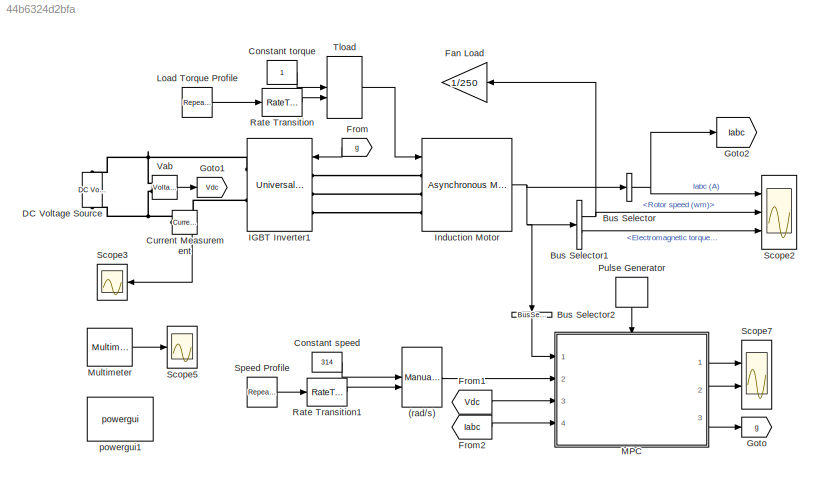
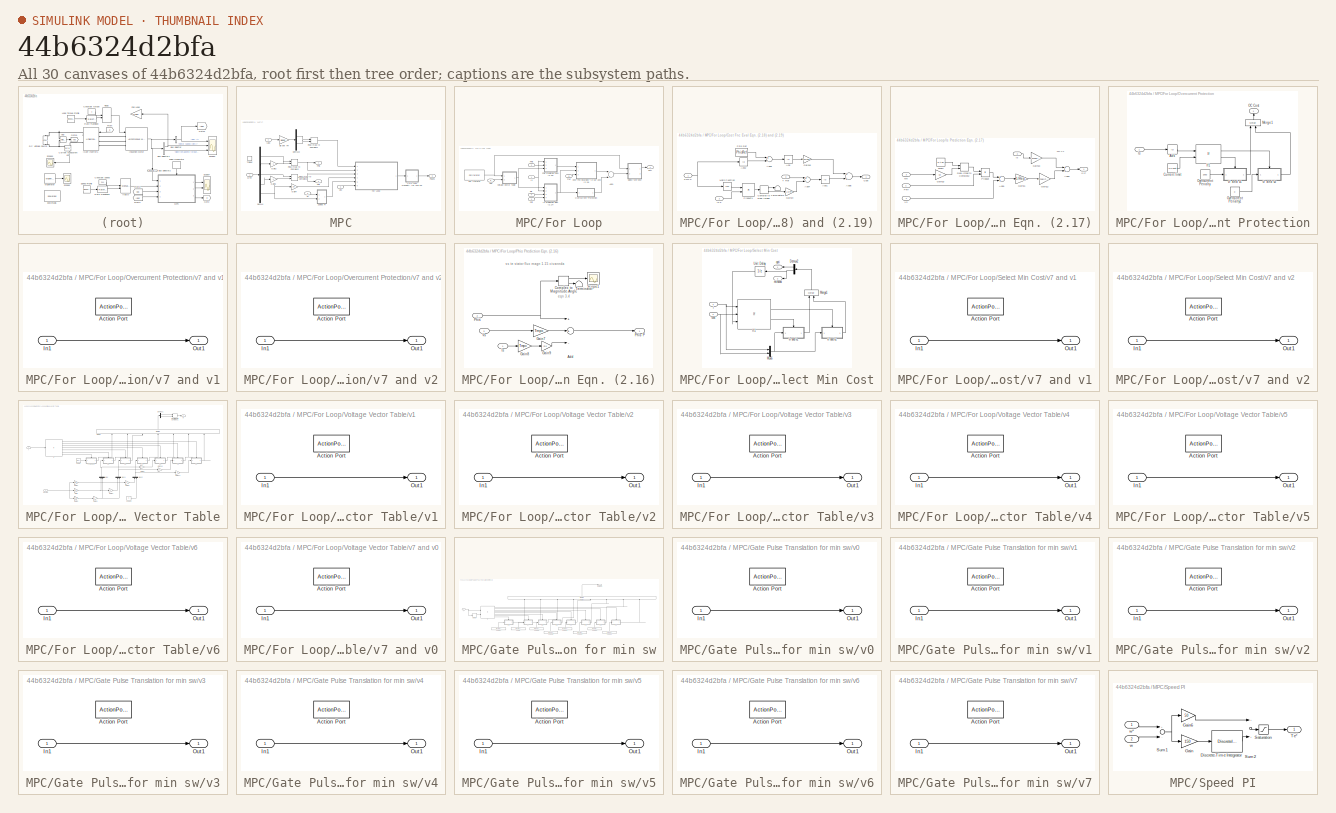
[diagram: thumbnail index - all 30 canvases of the model, root first then tree order]
MODEL slx_44b6324d2bfa
KIND model
CONFIG AbsTol = auto
CONFIG FixedStep = 1e-6
CONFIG MaxStep = 4e-6
CONFIG MinStep = auto
CONFIG RelTol = 1e-6
CONFIG SampleTimeConstraint = Unconstrained
CONFIG Solver = FixedStepAuto
CONFIG SolverMode = Auto
CONFIG SolverName = FixedStepAuto
CONFIG StartTime = 0.0
CONFIG StopTime = 3.8
BLOCK [ManualSwitch] (rad//s)
  CurrentSetting = 0
BLOCK [BusSelector] Bus Selector
  OutputAsBus = on
  OutputSignals = Stator measurements.Stator current is_a (A),Stator measurements.Stator current is_b (A),Stator measurements.Stator current is_c (A)
  Ports = [1, 1]
BLOCK [BusSelector] Bus Selector1
  OutputSignals = Mechanical.Rotor speed (wm),Mechanical.Electromagnetic torque Te (N*m)
  Ports = [1, 2]
BLOCK [BusSelector] Bus Selector2
  OutputAsBus = on
  OutputSignals = Stator measurements.Stator flux phis_q (V s),Stator measurements.Stator flux phis_d (V s),Rotor measurements.Rotor flux phir_q (V s),Rotor measurements.Rotor flux phir_d (V s),Mechanical.Rotor speed (wm)
  Ports = [1, 1]
BLOCK [Constant] Constant speed
  Value = 314
BLOCK [Constant] Constant torque
BLOCK [Reference] Current Measurement  REF=powerlib/Measurements/Current Measurement
  Ports = [0, 1, 0, 0, 0, 1, 1]
  SourceBlock = powerlib/Measurements/Current Measurement
  SourceType = Current Measurement
  UserDataPersistent = on
BLOCK [Reference] DC Voltage Source  REF=powerlib/Electrical
Sources/DC Voltage Source
  Ports = [0, 0, 0, 0, 0, 1, 1]
  SourceBlock = powerlib/Electrical\nSources/DC Voltage Source
  SourceType = DC Voltage Source
BLOCK [Gain] Fan Load
  Gain = 1/250
  OutDataTypeStr = Inherit: Inherit via internal rule
  ParamDataTypeStr = Inherit: Inherit via internal rule
  SaturateOnIntegerOverflow = off
BLOCK [From] From
  GotoTag = g
BLOCK [From] From1
  GotoTag = Vdc
BLOCK [From] From2
  GotoTag = Iabc
BLOCK [Goto] Goto
  GotoTag = g
BLOCK [Goto] Goto1
  GotoTag = Vdc
BLOCK [Goto] Goto2
  GotoTag = Iabc
BLOCK [Reference] IGBT Inverter1  REF=powerlib/Power
Electronics/Universal Bridge
  AttributesFormatString = \n
  Ports = [1, 0, 0, 0, 0, 3, 2]
  SourceBlock = powerlib/Power\nElectronics/Universal Bridge
  SourceType = Universal Bridge
BLOCK [Reference] Induction Motor  REF=powerlib/Machines/Asynchronous Machine
SI Units
  AttributesFormatString = \n
  Ports = [1, 1, 0, 0, 0, 3]
  SourceBlock = powerlib/Machines/Asynchronous Machine\nSI Units
  SourceType = Asynchronous Machine
BLOCK [Reference] Load Torque Profile  REF=simulink/Sources/Repeating
Sequence
Stair
  Ports = [0, 1]
  SourceBlock = simulink/Sources/Repeating\nSequence\nStair
  SourceType = Repeating Sequence Stair
BLOCK [SubSystem] MPC
  Ports = [4, 3, 0, 1]
  RequestExecContextInheritance = off
  TreatAsAtomicUnit = on
  Variant = off
BLOCK [Demux] MPC/Demux
  DisplayOption = bar
  Outputs = 5
  Ports = [1, 5]
BLOCK [Demux] MPC/Demux2
  DisplayOption = bar
  Outputs = 2
  Ports = [1, 2]
BLOCK [SubSystem] MPC/For Loop
  Ports = [6, 1]
  RequestExecContextInheritance = off
  TreatAsAtomicUnit = on
  Variant = off
BLOCK [Sum] MPC/For Loop/Add1
  InputSameDT = off
  OutDataTypeStr = Inherit: Inherit via internal rule
  Ports = [2, 1]
  SaturateOnIntegerOverflow = off
BLOCK [SubSystem] MPC/For Loop/Cost Fnc Eval Eqn. (2.18) and (2.19)
  Ports = [3, 1]
  RequestExecContextInheritance = off
  Variant = off
BLOCK [Abs] MPC/For Loop/Cost Fnc Eval Eqn. (2.18) and (2.19)/Abs
  SaturateOnIntegerOverflow = off
BLOCK [Abs] MPC/For Loop/Cost Fnc Eval Eqn. (2.18) and (2.19)/Abs1
  SaturateOnIntegerOverflow = off
BLOCK [Abs] MPC/For Loop/Cost Fnc Eval Eqn. (2.18) and (2.19)/Abs2
  SaturateOnIntegerOverflow = off
BLOCK [Sum] MPC/For Loop/Cost Fnc Eval Eqn. (2.18) and (2.19)/Add3
  InputSameDT = off
  Inputs = +-
  OutDataTypeStr = Inherit: Inherit via internal rule
  Ports = [2, 1]
  SaturateOnIntegerOverflow = off
BLOCK [Sum] MPC/For Loop/Cost Fnc Eval Eqn. (2.18) and (2.19)/Add4
  InputSameDT = off
  Inputs = +-
  OutDataTypeStr = Inherit: Inherit via internal rule
  Ports = [2, 1]
  SaturateOnIntegerOverflow = off
BLOCK [Sum] MPC/For Loop/Cost Fnc Eval Eqn. (2.18) and (2.19)/Add5
  InputSameDT = off
  OutDataTypeStr = Inherit: Inherit via internal rule
  Ports = [2, 1]
  SaturateOnIntegerOverflow = off
BLOCK [ComplexToRealImag] MPC/For Loop/Cost Fnc Eval Eqn. (2.18) and (2.19)/Complex to Real-Imag1
  Ports = [1, 2]
BLOCK [Outport] MPC/For Loop/Cost Fnc Eval Eqn. (2.18) and (2.19)/Cost
  IconDisplay = Port number
BLOCK [Gain] MPC/For Loop/Cost Fnc Eval Eqn. (2.18) and (2.19)/Gain14
  Gain = 1.5*PP
  OutDataTypeStr = Inherit: Inherit via internal rule
  ParamDataTypeStr = Inherit: Inherit via internal rule
  SaturateOnIntegerOverflow = off
BLOCK [Gain] MPC/For Loop/Cost Fnc Eval Eqn. (2.18) and (2.19)/Gain15
  Gain = Lambda
  OutDataTypeStr = Inherit: Inherit via internal rule
  ParamDataTypeStr = Inherit: Inherit via internal rule
  SaturateOnIntegerOverflow = off
BLOCK [Inport] MPC/For Loop/Cost Fnc Eval Eqn. (2.18) and (2.19)/Is P
  IconDisplay = Port number
  Port = 2
BLOCK [Math] MPC/For Loop/Cost Fnc Eval Eqn. (2.18) and (2.19)/Math Function
  Operator = conj
  Ports = [1, 1]
BLOCK [Inport] MPC/For Loop/Cost Fnc Eval Eqn. (2.18) and (2.19)/Phis P
  IconDisplay = Port number
BLOCK [Constant] MPC/For Loop/Cost Fnc Eval Eqn. (2.18) and (2.19)/Phis Ref
  Value = PhisRef
BLOCK [Product] MPC/For Loop/Cost Fnc Eval Eqn. (2.18) and (2.19)/Product1
  InputSameDT = off
  OutDataTypeStr = Inherit: Inherit via internal rule
  Ports = [2, 1]
  RndMeth = Floor
  SaturateOnIntegerOverflow = off
BLOCK [Inport] MPC/For Loop/Cost Fnc Eval Eqn. (2.18) and (2.19)/T Ref
  IconDisplay = Port number
  Port = 3
BLOCK [Terminator] MPC/For Loop/Cost Fnc Eval Eqn. (2.18) and (2.19)/Terminator2
BLOCK [ForIterator] MPC/For Loop/For Iterator
  IterationLimit = 7
  IterationVariableDataType = double
  Ports = [0, 1]
BLOCK [Inport] MPC/For Loop/Is
  IconDisplay = Port number
BLOCK [SubSystem] MPC/For Loop/Is Prediction Eqn. (2.17)
  Ports = [4, 1]
  RequestExecContextInheritance = off
  Variant = off
BLOCK [Sum] MPC/For Loop/Is Prediction Eqn. (2.17)/Add1
  InputSameDT = off
  OutDataTypeStr = Inherit: Inherit via internal rule
  Ports = [2, 1]
  SaturateOnIntegerOverflow = off
BLOCK [Sum] MPC/For Loop/Is Prediction Eqn. (2.17)/Add2
  InputSameDT = off
  OutDataTypeStr = Inherit: Inherit via internal rule
  Ports = [2, 1]
  SaturateOnIntegerOverflow = off
BLOCK [Gain] MPC/For Loop/Is Prediction Eqn. (2.17)/Gain10
  Gain = -kr
  OutDataTypeStr = Inherit: Inherit via internal rule
  ParamDataTypeStr = Inherit: Inherit via internal rule
  SaturateOnIntegerOverflow = off
BLOCK [Gain] MPC/For Loop/Is Prediction Eqn. (2.17)/Gain11
  Gain = 1/Req
  OutDataTypeStr = Inherit: Inherit via internal rule
  ParamDataTypeStr = Inherit: Inherit via internal rule
  SaturateOnIntegerOverflow = off
BLOCK [Gain] MPC/For Loop/Is Prediction Eqn. (2.17)/Gain12
  Gain = Tmpc/(taus+Tmpc)
  OutDataTypeStr = Inherit: Inherit via internal rule
  ParamDataTypeStr = Inherit: Inherit via internal rule
  SaturateOnIntegerOverflow = off
BLOCK [Gain] MPC/For Loop/Is Prediction Eqn. (2.17)/Gain13
  Gain = 1-Tmpc/taus
  OutDataTypeStr = Inherit: Inherit via internal rule
  ParamDataTypeStr = Inherit: Inherit via internal rule
  SaturateOnIntegerOverflow = off
BLOCK [Inport] MPC/For Loop/Is Prediction Eqn. (2.17)/Is
  IconDisplay = Port number
  Port = 2
BLOCK [Outport] MPC/For Loop/Is Prediction Eqn. (2.17)/Is P
  IconDisplay = Port number
BLOCK [Inport] MPC/For Loop/Is Prediction Eqn. (2.17)/Phir
  IconDisplay = Port number
  Port = 4
BLOCK [Product] MPC/For Loop/Is Prediction Eqn. (2.17)/Product
  InputSameDT = off
  OutDataTypeStr = Inherit: Inherit via internal rule
  Ports = [2, 1]
  RndMeth = Floor
  SaturateOnIntegerOverflow = off
BLOCK [RealImagToComplex] MPC/For Loop/Is Prediction Eqn. (2.17)/Real-Imag to Complex2
  Ports = [2, 1]
BLOCK [Inport] MPC/For Loop/Is Prediction Eqn. (2.17)/Vs
  IconDisplay = Port number
BLOCK [Constant] MPC/For Loop/Is Prediction Eqn. (2.17)/cons3
  Value = kr/taur
BLOCK [Inport] MPC/For Loop/Is Prediction Eqn. (2.17)/we
  IconDisplay = Port number
  Port = 3
BLOCK [SubSystem] MPC/For Loop/Overcurrent Protection
  Ports = [1, 1]
  RequestExecContextInheritance = off
  Variant = off
BLOCK [Abs] MPC/For Loop/Overcurrent Protection/Abs
  SaturateOnIntegerOverflow = off
BLOCK [Constant] MPC/For Loop/Overcurrent Protection/Current limit
  Value = OCLimit
BLOCK [If] MPC/For Loop/Overcurrent Protection/If1
  IfExpression = u1<u2
  NumInputs = 2
  Ports = [2, 2]
BLOCK [Inport] MPC/For Loop/Overcurrent Protection/Is
  IconDisplay = Port number
BLOCK [Merge] MPC/For Loop/Overcurrent Protection/Merge1
  Ports = [2, 1]
BLOCK [Outport] MPC/For Loop/Overcurrent Protection/OC Cost
  IconDisplay = Port number
BLOCK [Constant] MPC/For Loop/Overcurrent Protection/Overcurrent Penalty
  Value = 10e3
BLOCK [Constant] MPC/For Loop/Overcurrent Protection/Overcurrent Penalty1
  Value = 0
BLOCK [SubSystem] MPC/For Loop/Overcurrent Protection/v7 and v1
  Ports = [1, 1, 0, 0, 0, 0, 0, 1]
  RequestExecContextInheritance = off
  TreatAsAtomicUnit = on
  Variant = off
BLOCK [ActionPort] MPC/For Loop/Overcurrent Protection/v7 and v1/Action Port
  ActionType = else
BLOCK [Inport] MPC/For Loop/Overcurrent Protection/v7 and v1/In1
  IconDisplay = Port number
BLOCK [Outport] MPC/For Loop/Overcurrent Protection/v7 and v1/Out1
  IconDisplay = Port number
BLOCK [SubSystem] MPC/For Loop/Overcurrent Protection/v7 and v2
  Ports = [1, 1, 0, 0, 0, 0, 0, 1]
  RequestExecContextInheritance = off
  TreatAsAtomicUnit = on
  Variant = off
BLOCK [ActionPort] MPC/For Loop/Overcurrent Protection/v7 and v2/Action Port
  ActionType = then
BLOCK [Inport] MPC/For Loop/Overcurrent Protection/v7 and v2/In1
  IconDisplay = Port number
BLOCK [Outport] MPC/For Loop/Overcurrent Protection/v7 and v2/Out1
  IconDisplay = Port number
BLOCK [Inport] MPC/For Loop/Phir
  IconDisplay = Port number
  Port = 3
BLOCK [Inport] MPC/For Loop/Phis
  IconDisplay = Port number
  Port = 2
BLOCK [SubSystem] MPC/For Loop/Phis Prediction Eqn. (2.16)
  Ports = [3, 1]
  RequestExecContextInheritance = off
  Variant = off
BLOCK [Sum] MPC/For Loop/Phis Prediction Eqn. (2.16)/Add
  InputSameDT = off
  Inputs = ++-
  OutDataTypeStr = Inherit: Inherit via internal rule
  Ports = [3, 1]
  SaturateOnIntegerOverflow = off
BLOCK [ComplexToMagnitudeAngle] MPC/For Loop/Phis Prediction Eqn. (2.16)/Complex to Magnitude-Angle
  Ports = [1, 2]
BLOCK [Gain] MPC/For Loop/Phis Prediction Eqn. (2.16)/Gain7
  Gain = Tmpc
  OutDataTypeStr = Inherit: Inherit via internal rule
  ParamDataTypeStr = Inherit: Inherit via internal rule
  SaturateOnIntegerOverflow = off
BLOCK [Gain] MPC/For Loop/Phis Prediction Eqn. (2.16)/Gain8
  Gain = Tmpc
  OutDataTypeStr = Inherit: Inherit via internal rule
  ParamDataTypeStr = Inherit: Inherit via internal rule
  SaturateOnIntegerOverflow = off
BLOCK [Gain] MPC/For Loop/Phis Prediction Eqn. (2.16)/Gain9
  Gain = Rs
  OutDataTypeStr = Inherit: Inherit via internal rule
  ParamDataTypeStr = Inherit: Inherit via internal rule
  SaturateOnIntegerOverflow = off
BLOCK [Inport] MPC/For Loop/Phis Prediction Eqn. (2.16)/Is
  IconDisplay = Port number
BLOCK [Inport] MPC/For Loop/Phis Prediction Eqn. (2.16)/Phis
  IconDisplay = Port number
  Port = 2
BLOCK [Outport] MPC/For Loop/Phis Prediction Eqn. (2.16)/Phis P
  IconDisplay = Port number
BLOCK [Scope] MPC/For Loop/Phis Prediction Eqn. (2.16)/Scope1
  Ports = [1]
  ScopeSpecificationString = Simulink.scopes.TimeScopeBlockCfg('CurrentConfiguration', extmgr.ConfigurationSet(extmgr.Configuration('Core','General UI',true),extmgr.Configuration('Core','Source UI',true),extmgr.Configuration('Sources','WiredSimulink',true,'DataLoggingVariableName','ScopeData1'),extmgr.Configuration('Visuals','Time Domain',true,'SerializedDisplays',{struct('MinYLimReal','-0.12944','MaxYLimReal','1.16492','YLab...<+1458ch>
BLOCK [Terminator] MPC/For Loop/Phis Prediction Eqn. (2.16)/Terminator
BLOCK [Inport] MPC/For Loop/Phis Prediction Eqn. (2.16)/Vs
  IconDisplay = Port number
  Port = 3
BLOCK [SubSystem] MPC/For Loop/Select Min Cost
  Ports = [2, 2]
  RequestExecContextInheritance = off
  Variant = off
BLOCK [Demux] MPC/For Loop/Select Min Cost/Demux2
  DisplayOption = bar
  Outputs = 2
  Ports = [1, 2]
BLOCK [If] MPC/For Loop/Select Min Cost/If1
  ElseIfExpressions = u2<=u3
  IfExpression = u1==1
  NumInputs = 3
  Ports = [3, 2]
  ShowElse = off
BLOCK [Merge] MPC/For Loop/Select Min Cost/Merge1
  Ports = [2, 1]
BLOCK [Mux] MPC/For Loop/Select Min Cost/Mux6
  DisplayOption = bar
  Inputs = 2
  Ports = [2, 1]
BLOCK [UnitDelay] MPC/For Loop/Select Min Cost/Unit Delay
  InputProcessing = Elements as channels (sample based)
  SampleTime = -1
BLOCK [Inport] MPC/For Loop/Select Min Cost/cost
  IconDisplay = Port number
  Port = 2
BLOCK [Inport] MPC/For Loop/Select Min Cost/i
  IconDisplay = Port number
BLOCK [Outport] MPC/For Loop/Select Min Cost/mincost
  IconDisplay = Port number
  Port = 2
BLOCK [Outport] MPC/For Loop/Select Min Cost/opti
  IconDisplay = Port number
BLOCK [SubSystem] MPC/For Loop/Select Min Cost/v7 and v1
  Ports = [1, 1, 0, 0, 0, 0, 0, 1]
  RequestExecContextInheritance = off
  TreatAsAtomicUnit = on
  Variant = off
BLOCK [ActionPort] MPC/For Loop/Select Min Cost/v7 and v1/Action Port
  ActionType = elseif
BLOCK [Inport] MPC/For Loop/Select Min Cost/v7 and v1/In1
  IconDisplay = Port number
BLOCK [Outport] MPC/For Loop/Select Min Cost/v7 and v1/Out1
  IconDisplay = Port number
BLOCK [SubSystem] MPC/For Loop/Select Min Cost/v7 and v2
  Ports = [1, 1, 0, 0, 0, 0, 0, 1]
  RequestExecContextInheritance = off
  TreatAsAtomicUnit = on
  Variant = off
BLOCK [ActionPort] MPC/For Loop/Select Min Cost/v7 and v2/Action Port
  ActionType = then
BLOCK [Inport] MPC/For Loop/Select Min Cost/v7 and v2/In1
  IconDisplay = Port number
BLOCK [Outport] MPC/For Loop/Select Min Cost/v7 and v2/Out1
  IconDisplay = Port number
BLOCK [Inport] MPC/For Loop/Tref
  IconDisplay = Port number
  Port = 5
BLOCK [Inport] MPC/For Loop/Vdc
  IconDisplay = Port number
  Port = 6
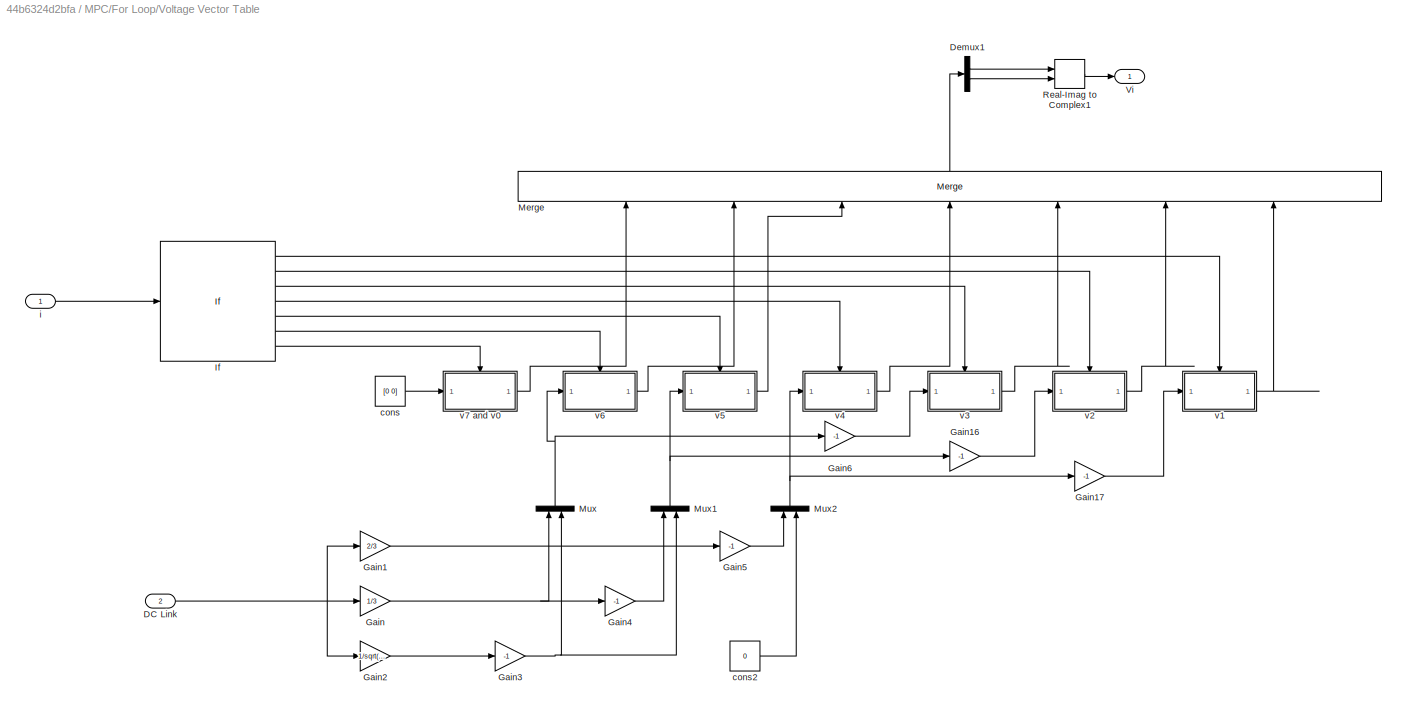
BLOCK [SubSystem] MPC/For Loop/Voltage Vector Table
  Ports = [2, 1]
  RequestExecContextInheritance = off
  Variant = off
BLOCK [Inport] MPC/For Loop/Voltage Vector Table/DC Link
  IconDisplay = Port number
  Port = 2
BLOCK [Demux] MPC/For Loop/Voltage Vector Table/Demux1
  DisplayOption = bar
  Outputs = 2
  Ports = [1, 2]
BLOCK [Gain] MPC/For Loop/Voltage Vector Table/Gain
  Gain = 1/3
  OutDataTypeStr = Inherit: Inherit via internal rule
  ParamDataTypeStr = Inherit: Inherit via internal rule
  SaturateOnIntegerOverflow = off
BLOCK [Gain] MPC/For Loop/Voltage Vector Table/Gain1
  Gain = 2/3
  OutDataTypeStr = Inherit: Inherit via internal rule
  ParamDataTypeStr = Inherit: Inherit via internal rule
  SaturateOnIntegerOverflow = off
BLOCK [Gain] MPC/For Loop/Voltage Vector Table/Gain16
  Gain = -1
  OutDataTypeStr = Inherit: Inherit via internal rule
  ParamDataTypeStr = Inherit: Inherit via internal rule
  SaturateOnIntegerOverflow = off
BLOCK [Gain] MPC/For Loop/Voltage Vector Table/Gain17
  Gain = -1
  OutDataTypeStr = Inherit: Inherit via internal rule
  ParamDataTypeStr = Inherit: Inherit via internal rule
  SaturateOnIntegerOverflow = off
BLOCK [Gain] MPC/For Loop/Voltage Vector Table/Gain2
  Gain = 1/sqrt(3)
  OutDataTypeStr = Inherit: Inherit via internal rule
  ParamDataTypeStr = Inherit: Inherit via internal rule
  SaturateOnIntegerOverflow = off
BLOCK [Gain] MPC/For Loop/Voltage Vector Table/Gain3
  Gain = -1
  OutDataTypeStr = Inherit: Inherit via internal rule
  ParamDataTypeStr = Inherit: Inherit via internal rule
  SaturateOnIntegerOverflow = off
BLOCK [Gain] MPC/For Loop/Voltage Vector Table/Gain4
  Gain = -1
  OutDataTypeStr = Inherit: Inherit via internal rule
  ParamDataTypeStr = Inherit: Inherit via internal rule
  SaturateOnIntegerOverflow = off
BLOCK [Gain] MPC/For Loop/Voltage Vector Table/Gain5
  Gain = -1
  OutDataTypeStr = Inherit: Inherit via internal rule
  ParamDataTypeStr = Inherit: Inherit via internal rule
  SaturateOnIntegerOverflow = off
BLOCK [Gain] MPC/For Loop/Voltage Vector Table/Gain6
  Gain = -1
  OutDataTypeStr = Inherit: Inherit via internal rule
  ParamDataTypeStr = Inherit: Inherit via internal rule
  SaturateOnIntegerOverflow = off
BLOCK [If] MPC/For Loop/Voltage Vector Table/If
  ElseIfExpressions = u1==2, u1==3, u1==4, u1==5, u1==6, u1==7
  IfExpression = u1==1
  Ports = [1, 7]
  ShowElse = off
BLOCK [Merge] MPC/For Loop/Voltage Vector Table/Merge
  Inputs = 7
  Ports = [7, 1]
BLOCK [Mux] MPC/For Loop/Voltage Vector Table/Mux
  DisplayOption = bar
  Inputs = 2
  Ports = [2, 1]
BLOCK [Mux] MPC/For Loop/Voltage Vector Table/Mux1
  DisplayOption = bar
  Inputs = 2
  Ports = [2, 1]
BLOCK [Mux] MPC/For Loop/Voltage Vector Table/Mux2
  DisplayOption = bar
  Inputs = 2
  Ports = [2, 1]
BLOCK [RealImagToComplex] MPC/For Loop/Voltage Vector Table/Real-Imag to Complex1
  Ports = [2, 1]
BLOCK [Outport] MPC/For Loop/Voltage Vector Table/Vi
  IconDisplay = Port number
BLOCK [Constant] MPC/For Loop/Voltage Vector Table/cons
  Value = [0 0]
BLOCK [Constant] MPC/For Loop/Voltage Vector Table/cons2
  Value = 0
BLOCK [Inport] MPC/For Loop/Voltage Vector Table/i
  IconDisplay = Port number
BLOCK [SubSystem] MPC/For Loop/Voltage Vector Table/v1
  Ports = [1, 1, 0, 0, 0, 0, 0, 1]
  RequestExecContextInheritance = off
  TreatAsAtomicUnit = on
  Variant = off
BLOCK [ActionPort] MPC/For Loop/Voltage Vector Table/v1/Action Port
  ActionType = then
BLOCK [Inport] MPC/For Loop/Voltage Vector Table/v1/In1
  IconDisplay = Port number
BLOCK [Outport] MPC/For Loop/Voltage Vector Table/v1/Out1
  IconDisplay = Port number
BLOCK [SubSystem] MPC/For Loop/Voltage Vector Table/v2
  Ports = [1, 1, 0, 0, 0, 0, 0, 1]
  RequestExecContextInheritance = off
  TreatAsAtomicUnit = on
  Variant = off
BLOCK [ActionPort] MPC/For Loop/Voltage Vector Table/v2/Action Port
  ActionType = elseif
BLOCK [Inport] MPC/For Loop/Voltage Vector Table/v2/In1
  IconDisplay = Port number
BLOCK [Outport] MPC/For Loop/Voltage Vector Table/v2/Out1
  IconDisplay = Port number
BLOCK [SubSystem] MPC/For Loop/Voltage Vector Table/v3
  Ports = [1, 1, 0, 0, 0, 0, 0, 1]
  RequestExecContextInheritance = off
  TreatAsAtomicUnit = on
  Variant = off
BLOCK [ActionPort] MPC/For Loop/Voltage Vector Table/v3/Action Port
  ActionType = elseif
BLOCK [Inport] MPC/For Loop/Voltage Vector Table/v3/In1
  IconDisplay = Port number
BLOCK [Outport] MPC/For Loop/Voltage Vector Table/v3/Out1
  IconDisplay = Port number
BLOCK [SubSystem] MPC/For Loop/Voltage Vector Table/v4
  Ports = [1, 1, 0, 0, 0, 0, 0, 1]
  RequestExecContextInheritance = off
  TreatAsAtomicUnit = on
  Variant = off
BLOCK [ActionPort] MPC/For Loop/Voltage Vector Table/v4/Action Port
  ActionType = elseif
BLOCK [Inport] MPC/For Loop/Voltage Vector Table/v4/In1
  IconDisplay = Port number
BLOCK [Outport] MPC/For Loop/Voltage Vector Table/v4/Out1
  IconDisplay = Port number
BLOCK [SubSystem] MPC/For Loop/Voltage Vector Table/v5
  Ports = [1, 1, 0, 0, 0, 0, 0, 1]
  RequestExecContextInheritance = off
  TreatAsAtomicUnit = on
  Variant = off
BLOCK [ActionPort] MPC/For Loop/Voltage Vector Table/v5/Action Port
  ActionType = elseif
BLOCK [Inport] MPC/For Loop/Voltage Vector Table/v5/In1
  IconDisplay = Port number
BLOCK [Outport] MPC/For Loop/Voltage Vector Table/v5/Out1
  IconDisplay = Port number
BLOCK [SubSystem] MPC/For Loop/Voltage Vector Table/v6
  Ports = [1, 1, 0, 0, 0, 0, 0, 1]
  RequestExecContextInheritance = off
  TreatAsAtomicUnit = on
  Variant = off
BLOCK [ActionPort] MPC/For Loop/Voltage Vector Table/v6/Action Port
  ActionType = elseif
BLOCK [Inport] MPC/For Loop/Voltage Vector Table/v6/In1
  IconDisplay = Port number
BLOCK [Outport] MPC/For Loop/Voltage Vector Table/v6/Out1
  IconDisplay = Port number
BLOCK [SubSystem] MPC/For Loop/Voltage Vector Table/v7 and v0
  Ports = [1, 1, 0, 0, 0, 0, 0, 1]
  RequestExecContextInheritance = off
  TreatAsAtomicUnit = on
  Variant = off
BLOCK [ActionPort] MPC/For Loop/Voltage Vector Table/v7 and v0/Action Port
  ActionType = elseif
BLOCK [Inport] MPC/For Loop/Voltage Vector Table/v7 and v0/In1
  IconDisplay = Port number
BLOCK [Outport] MPC/For Loop/Voltage Vector Table/v7 and v0/Out1
  IconDisplay = Port number
BLOCK [Outport] MPC/For Loop/opti
  IconDisplay = Port number
BLOCK [Inport] MPC/For Loop/we
  IconDisplay = Port number
  Port = 4
BLOCK [Gain] MPC/Gain2
  Gain = -1
  OutDataTypeStr = Inherit: Inherit via internal rule
  ParamDataTypeStr = Inherit: Inherit via internal rule
  SaturateOnIntegerOverflow = off
BLOCK [Gain] MPC/Gain3
  Gain = -1
  OutDataTypeStr = Inherit: Inherit via internal rule
  ParamDataTypeStr = Inherit: Inherit via internal rule
  SaturateOnIntegerOverflow = off
BLOCK [Gain] MPC/Gain4
  Gain = PP
  OutDataTypeStr = Inherit: Inherit via internal rule
  ParamDataTypeStr = Inherit: Inherit via internal rule
  SaturateOnIntegerOverflow = off
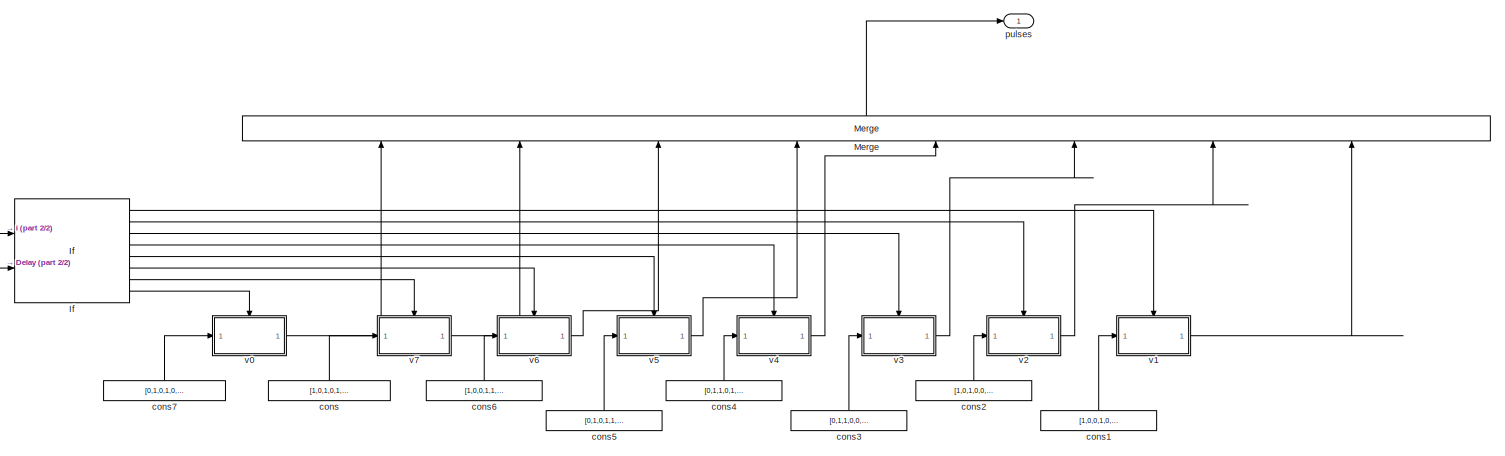
[diagram: MPC/Gate Pulse Translation for min sw - part 1/2, most of the canvas]
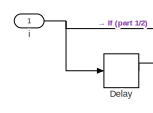
[diagram: MPC/Gate Pulse Translation for min sw - part 2/2, middle left region]
BLOCK [SubSystem] MPC/Gate Pulse Translation for min sw
  Ports = [1, 1]
  RequestExecContextInheritance = off
  Variant = off
BLOCK [Delay] MPC/Gate Pulse Translation for min sw/Delay
  DelayLength = 1
  InitialCondition = 0
  InputPortMap = u0
  Ports = [1, 1]
BLOCK [If] MPC/Gate Pulse Translation for min sw/If
  ElseIfExpressions = u1==2, u1==3, u1==4, u1==5, u1==6,(((u1==7)&(u2==2)) | ((u1==7)&(u2==4)) | ((u1==7)&(u2==6)))
  IfExpression = u1==1
  NumInputs = 2
  Ports = [2, 8]
BLOCK [Merge] MPC/Gate Pulse Translation for min sw/Merge
  Inputs = 8
  Ports = [8, 1]
BLOCK [Constant] MPC/Gate Pulse Translation for min sw/cons
  Value = [1,0,1,0,1,0]
BLOCK [Constant] MPC/Gate Pulse Translation for min sw/cons1
  Value = [1,0,0,1,0,1]
BLOCK [Constant] MPC/Gate Pulse Translation for min sw/cons2
  Value = [1,0,1,0,0,1]
BLOCK [Constant] MPC/Gate Pulse Translation for min sw/cons3
  Value = [0,1,1,0,0,1]
BLOCK [Constant] MPC/Gate Pulse Translation for min sw/cons4
  Value = [0,1,1,0,1,0]
BLOCK [Constant] MPC/Gate Pulse Translation for min sw/cons5
  Value = [0,1,0,1,1,0]
BLOCK [Constant] MPC/Gate Pulse Translation for min sw/cons6
  Value = [1,0,0,1,1,0]
BLOCK [Constant] MPC/Gate Pulse Translation for min sw/cons7
  Value = [0,1,0,1,0,1]
BLOCK [Inport] MPC/Gate Pulse Translation for min sw/i
  IconDisplay = Port number
BLOCK [Outport] MPC/Gate Pulse Translation for min sw/pulses
  IconDisplay = Port number
BLOCK [SubSystem] MPC/Gate Pulse Translation for min sw/v0
  Ports = [1, 1, 0, 0, 0, 0, 0, 1]
  RequestExecContextInheritance = off
  TreatAsAtomicUnit = on
  Variant = off
BLOCK [ActionPort] MPC/Gate Pulse Translation for min sw/v0/Action Port
  ActionType = else
BLOCK [Inport] MPC/Gate Pulse Translation for min sw/v0/In1
  IconDisplay = Port number
BLOCK [Outport] MPC/Gate Pulse Translation for min sw/v0/Out1
  IconDisplay = Port number
BLOCK [SubSystem] MPC/Gate Pulse Translation for min sw/v1
  Ports = [1, 1, 0, 0, 0, 0, 0, 1]
  RequestExecContextInheritance = off
  TreatAsAtomicUnit = on
  Variant = off
BLOCK [ActionPort] MPC/Gate Pulse Translation for min sw/v1/Action Port
  ActionType = then
BLOCK [Inport] MPC/Gate Pulse Translation for min sw/v1/In1
  IconDisplay = Port number
BLOCK [Outport] MPC/Gate Pulse Translation for min sw/v1/Out1
  IconDisplay = Port number
BLOCK [SubSystem] MPC/Gate Pulse Translation for min sw/v2
  Ports = [1, 1, 0, 0, 0, 0, 0, 1]
  RequestExecContextInheritance = off
  TreatAsAtomicUnit = on
  Variant = off
BLOCK [ActionPort] MPC/Gate Pulse Translation for min sw/v2/Action Port
  ActionType = elseif
BLOCK [Inport] MPC/Gate Pulse Translation for min sw/v2/In1
  IconDisplay = Port number
BLOCK [Outport] MPC/Gate Pulse Translation for min sw/v2/Out1
  IconDisplay = Port number
BLOCK [SubSystem] MPC/Gate Pulse Translation for min sw/v3
  Ports = [1, 1, 0, 0, 0, 0, 0, 1]
  RequestExecContextInheritance = off
  TreatAsAtomicUnit = on
  Variant = off
BLOCK [ActionPort] MPC/Gate Pulse Translation for min sw/v3/Action Port
  ActionType = elseif
BLOCK [Inport] MPC/Gate Pulse Translation for min sw/v3/In1
  IconDisplay = Port number
BLOCK [Outport] MPC/Gate Pulse Translation for min sw/v3/Out1
  IconDisplay = Port number
BLOCK [SubSystem] MPC/Gate Pulse Translation for min sw/v4
  Ports = [1, 1, 0, 0, 0, 0, 0, 1]
  RequestExecContextInheritance = off
  TreatAsAtomicUnit = on
  Variant = off
BLOCK [ActionPort] MPC/Gate Pulse Translation for min sw/v4/Action Port
  ActionType = elseif
BLOCK [Inport] MPC/Gate Pulse Translation for min sw/v4/In1
  IconDisplay = Port number
BLOCK [Outport] MPC/Gate Pulse Translation for min sw/v4/Out1
  IconDisplay = Port number
BLOCK [SubSystem] MPC/Gate Pulse Translation for min sw/v5
  Ports = [1, 1, 0, 0, 0, 0, 0, 1]
  RequestExecContextInheritance = off
  TreatAsAtomicUnit = on
  Variant = off
BLOCK [ActionPort] MPC/Gate Pulse Translation for min sw/v5/Action Port
  ActionType = elseif
BLOCK [Inport] MPC/Gate Pulse Translation for min sw/v5/In1
  IconDisplay = Port number
BLOCK [Outport] MPC/Gate Pulse Translation for min sw/v5/Out1
  IconDisplay = Port number
BLOCK [SubSystem] MPC/Gate Pulse Translation for min sw/v6
  Ports = [1, 1, 0, 0, 0, 0, 0, 1]
  RequestExecContextInheritance = off
  TreatAsAtomicUnit = on
  Variant = off
BLOCK [ActionPort] MPC/Gate Pulse Translation for min sw/v6/Action Port
  ActionType = elseif
BLOCK [Inport] MPC/Gate Pulse Translation for min sw/v6/In1
  IconDisplay = Port number
BLOCK [Outport] MPC/Gate Pulse Translation for min sw/v6/Out1
  IconDisplay = Port number
BLOCK [SubSystem] MPC/Gate Pulse Translation for min sw/v7
  Ports = [1, 1, 0, 0, 0, 0, 0, 1]
  RequestExecContextInheritance = off
  TreatAsAtomicUnit = on
  Variant = off
BLOCK [ActionPort] MPC/Gate Pulse Translation for min sw/v7/Action Port
  ActionType = elseif
BLOCK [Inport] MPC/Gate Pulse Translation for min sw/v7/In1
  IconDisplay = Port number
BLOCK [Outport] MPC/Gate Pulse Translation for min sw/v7/Out1
  IconDisplay = Port number
BLOCK [Inport] MPC/Iabc
  IconDisplay = Port number
  Port = 4
BLOCK [Inport] MPC/MTR
  IconDisplay = Port number
BLOCK [Outport] MPC/Phir
  IconDisplay = Port number
  Port = 2
BLOCK [Outport] MPC/Phis
  IconDisplay = Port number
BLOCK [Outport] MPC/Pulses
  IconDisplay = Port number
  Port = 3
BLOCK [RealImagToComplex] MPC/Real-Imag to Complex2
  Ports = [2, 1]
BLOCK [RealImagToComplex] MPC/Real-Imag to Complex3
  Ports = [2, 1]
BLOCK [RealImagToComplex] MPC/Real-Imag to Complex4
  Ports = [2, 1]
BLOCK [SubSystem] MPC/Speed PI
  Ports = [2, 1]
  RequestExecContextInheritance = off
  Variant = off
BLOCK [DiscreteIntegrator] MPC/Speed PI/Discrete-Time Integrator
  ICPrevOutput = DiscIntNeverNeededParam
  ICPrevScaledInput = DiscIntNeverNeededParam
  IntegratorMethod = Integration: Trapezoidal
  LimitOutput = on
  LowerSaturationLimit = -90
  Ports = [1, 1]
  SampleTime = -1
  UpperSaturationLimit = 90
BLOCK [Gain] MPC/Speed PI/Gain
  Gain = 150
BLOCK [Gain] MPC/Speed PI/Gain6
  Gain = 50
BLOCK [Saturate] MPC/Speed PI/Saturation
  InputPortMap = u0
  LowerLimit = NTlimit
  Ports = [1, 1]
  UpperLimit = PTlimit
BLOCK [Sum] MPC/Speed PI/Sum1
  Inputs = +-
  Ports = [2, 1]
BLOCK [Sum] MPC/Speed PI/Sum2
  Ports = [2, 1]
BLOCK [Outport] MPC/Speed PI/Te*
  IconDisplay = Port number
  InitialOutput = 0
BLOCK [Inport] MPC/Speed PI/w
  IconDisplay = Port number
  Port = 2
BLOCK [Inport] MPC/Speed PI/w*
  IconDisplay = Port number
BLOCK [TriggerPort] MPC/Trigger
  Ports = []
  StatesWhenEnabling = held
  VariantControl = Variant
BLOCK [Inport] MPC/Vdc
  IconDisplay = Port number
  Port = 3
BLOCK [Gain] MPC/alp bet TR
  Gain = alpbet
  Multiplication = Matrix(K*u)
  OutDataTypeStr = Inherit: Inherit via internal rule
  ParamDataTypeStr = Inherit: Inherit via internal rule
  SaturateOnIntegerOverflow = off
BLOCK [Inport] MPC/w*
  IconDisplay = Port number
  Port = 2
BLOCK [Reference] Multimeter  REF=powerlib/Measurements/Multimeter
  Ports = [0, 1]
  SourceBlock = powerlib/Measurements/Multimeter
  SourceType = MultimeterPSB
BLOCK [DiscretePulseGenerator] Pulse Generator
  Period = Tmpc
  Ports = [0, 1]
  PulseType = Time based
  PulseWidth = 40
BLOCK [RateTransition] Rate Transition
  X0 = 0.7
BLOCK [RateTransition] Rate Transition1
  X0 = 300
BLOCK [Scope] Scope2
  NumInputPorts = 3
  Ports = [3]
  ScopeSpecificationString = Simulink.scopes.TimeScopeBlockCfg('CurrentConfiguration', extmgr.ConfigurationSet(extmgr.Configuration('Core','General UI',true,'FigureColor',[1 1 1]),extmgr.Configuration('Core','Source UI',true),extmgr.Configuration('Sources','WiredSimulink',true,'DataLoggingVariableName','ScopeData2'),extmgr.Configuration('Visuals','Time Domain',true,'PlotType','Line','SerializedDisplays',{struct('MinYLimReal',...<+3381ch>
BLOCK [Scope] Scope3
  Ports = [1]
  ScopeSpecificationString = Simulink.scopes.TimeScopeBlockCfg('CurrentConfiguration', extmgr.ConfigurationSet(extmgr.Configuration('Core','General UI',true),extmgr.Configuration('Core','Source UI',true),extmgr.Configuration('Sources','WiredSimulink',true,'DataLoggingVariableName','ScopeData1'),extmgr.Configuration('Visuals','Time Domain',true,'SerializedDisplays',{struct('MinYLimReal','-0.9084','MaxYLimReal','11.69675','YLab...<+1451ch>
BLOCK [Scope] Scope5
  Ports = [1]
  ScopeSpecificationString = Simulink.scopes.TimeScopeBlockCfg('CurrentConfiguration', extmgr.ConfigurationSet(extmgr.Configuration('Core','General UI',true,'FigureColor',[1 1 1]),extmgr.Configuration('Core','Source UI',true),extmgr.Configuration('Sources','WiredSimulink',true,'DataLoggingVariableName','ScopeData1'),extmgr.Configuration('Visuals','Time Domain',true,'TimeAxisLabels','None','SerializedDisplays',{struct('MinYLim...<+2453ch>
BLOCK [Scope] Scope7
  NumInputPorts = 2
  Ports = [2]
  ScopeSpecificationString = Simulink.scopes.TimeScopeBlockCfg('CurrentConfiguration', extmgr.ConfigurationSet(extmgr.Configuration('Core','General UI',true),extmgr.Configuration('Core','Source UI',true),extmgr.Configuration('Sources','WiredSimulink',true,'DataLoggingVariableName','ScopeData2'),extmgr.Configuration('Visuals','Time Domain',true,'SerializedDisplays',{struct('MinYLimReal','-2.90055','MaxYLimReal','2.12707','YLab...<+2088ch>
BLOCK [Reference] Speed Profile  REF=simulink/Sources/Repeating
Sequence
Stair
  Ports = [0, 1]
  SourceBlock = simulink/Sources/Repeating\nSequence\nStair
  SourceType = Repeating Sequence Stair
BLOCK [ManualSwitch] Tload
  CurrentSetting = 0
BLOCK [Reference] Vab  REF=powerlib/Measurements/Voltage Measurement
  AttributesFormatString = \n
  Ports = [0, 1, 0, 0, 0, 2]
  SourceBlock = powerlib/Measurements/Voltage Measurement
  SourceType = Voltage Measurement
  Tag = PoWeRsYsTeMmEaSuReMeNt
BLOCK [Reference] powergui1  REF=powerlib/powergui
  Ports = []
  Priority = 1
  SourceBlock = powerlib/powergui
  SourceType = PSB option menu block
ANNOTATION MPC/For Loop/Is Prediction Eqn. (2.17): eqn 3.5
ANNOTATION MPC/For Loop/Phis Prediction Eqn. (2.16): eqn 3.4
ANNOTATION MPC/For Loop/Phis Prediction Eqn. (2.16): ss te stator flux magn 1.15 civarında
LINE (rad//s):1 -> MPC:2
NET Bus Selector1:1 -> Fan Load:1, Scope2:2
LINE Bus Selector1:2 -> Scope2:3
LINE Bus Selector2:1 -> MPC:1
NET Bus Selector:1 -> Goto2:1, Scope2:1
LINE Constant speed:1 -> (rad//s):1
LINE Constant torque:1 -> Tload:1
LINE Current Measurement:1 -> Scope3:1
LINE From1:1 -> MPC:3
LINE From2:1 -> MPC:4
LINE From:1 -> IGBT Inverter1:1
NET Induction Motor:1 -> Bus Selector1:1, Bus Selector2:1, Bus Selector:1
LINE Load Torque Profile:1 -> Rate Transition:1
LINE MPC/Demux2:1 -> MPC/Real-Imag to Complex4:1
LINE MPC/Demux2:2 -> MPC/Real-Imag to Complex4:2
LINE MPC/Demux:1 -> MPC/Real-Imag to Complex2:1
LINE MPC/Demux:2 -> MPC/Gain2:1
LINE MPC/Demux:3 -> MPC/Real-Imag to Complex3:1
LINE MPC/Demux:4 -> MPC/Gain3:1
NET MPC/Demux:5 -> MPC/Gain4:1, MPC/Speed PI:2
LINE MPC/For Loop/Add1:1 -> MPC/For Loop/Select Min Cost:2
LINE MPC/For Loop/Cost Fnc Eval Eqn. (2.18) and (2.19)/Abs1:1 -> MPC/For Loop/Cost Fnc Eval Eqn. (2.18) and (2.19)/Add5:2
LINE MPC/For Loop/Cost Fnc Eval Eqn. (2.18) and (2.19)/Abs2:1 -> MPC/For Loop/Cost Fnc Eval Eqn. (2.18) and (2.19)/Add3:2
LINE MPC/For Loop/Cost Fnc Eval Eqn. (2.18) and (2.19)/Abs:1 -> MPC/For Loop/Cost Fnc Eval Eqn. (2.18) and (2.19)/Gain15:1
LINE MPC/For Loop/Cost Fnc Eval Eqn. (2.18) and (2.19)/Add3:1 -> MPC/For Loop/Cost Fnc Eval Eqn. (2.18) and (2.19)/Abs:1
LINE MPC/For Loop/Cost Fnc Eval Eqn. (2.18) and (2.19)/Add4:1 -> MPC/For Loop/Cost Fnc Eval Eqn. (2.18) and (2.19)/Abs1:1
LINE MPC/For Loop/Cost Fnc Eval Eqn. (2.18) and (2.19)/Add5:1 -> MPC/For Loop/Cost Fnc Eval Eqn. (2.18) and (2.19)/Cost:1
LINE MPC/For Loop/Cost Fnc Eval Eqn. (2.18) and (2.19)/Complex to Real-Imag1:1 -> MPC/For Loop/Cost Fnc Eval Eqn. (2.18) and (2.19)/Terminator2:1
LINE MPC/For Loop/Cost Fnc Eval Eqn. (2.18) and (2.19)/Complex to Real-Imag1:2 -> MPC/For Loop/Cost Fnc Eval Eqn. (2.18) and (2.19)/Gain14:1
LINE MPC/For Loop/Cost Fnc Eval Eqn. (2.18) and (2.19)/Gain14:1 -> MPC/For Loop/Cost Fnc Eval Eqn. (2.18) and (2.19)/Add4:2
LINE MPC/For Loop/Cost Fnc Eval Eqn. (2.18) and (2.19)/Gain15:1 -> MPC/For Loop/Cost Fnc Eval Eqn. (2.18) and (2.19)/Add5:1
LINE MPC/For Loop/Cost Fnc Eval Eqn. (2.18) and (2.19)/Is P:1 -> MPC/For Loop/Cost Fnc Eval Eqn. (2.18) and (2.19)/Product1:2
LINE MPC/For Loop/Cost Fnc Eval Eqn. (2.18) and (2.19)/Math Function:1 -> MPC/For Loop/Cost Fnc Eval Eqn. (2.18) and (2.19)/Product1:1
NET MPC/For Loop/Cost Fnc Eval Eqn. (2.18) and (2.19)/Phis P:1 -> MPC/For Loop/Cost Fnc Eval Eqn. (2.18) and (2.19)/Abs2:1, MPC/For Loop/Cost Fnc Eval Eqn. (2.18) and (2.19)/Math Function:1
LINE MPC/For Loop/Cost Fnc Eval Eqn. (2.18) and (2.19)/Phis Ref:1 -> MPC/For Loop/Cost Fnc Eval Eqn. (2.18) and (2.19)/Add3:1
LINE MPC/For Loop/Cost Fnc Eval Eqn. (2.18) and (2.19)/Product1:1 -> MPC/For Loop/Cost Fnc Eval Eqn. (2.18) and (2.19)/Complex to Real-Imag1:1
LINE MPC/For Loop/Cost Fnc Eval Eqn. (2.18) and (2.19)/T Ref:1 -> MPC/For Loop/Cost Fnc Eval Eqn. (2.18) and (2.19)/Add4:1
LINE MPC/For Loop/Cost Fnc Eval Eqn. (2.18) and (2.19):1 -> MPC/For Loop/Add1:1
NET MPC/For Loop/For Iterator:1 -> MPC/For Loop/Select Min Cost:1, MPC/For Loop/Voltage Vector Table:1
LINE MPC/For Loop/Is Prediction Eqn. (2.17)/Add1:1 -> MPC/For Loop/Is Prediction Eqn. (2.17)/Gain11:1
LINE MPC/For Loop/Is Prediction Eqn. (2.17)/Add2:1 -> MPC/For Loop/Is Prediction Eqn. (2.17)/Is P:1
LINE MPC/For Loop/Is Prediction Eqn. (2.17)/Gain10:1 -> MPC/For Loop/Is Prediction Eqn. (2.17)/Real-Imag to Complex2:2
LINE MPC/For Loop/Is Prediction Eqn. (2.17)/Gain11:1 -> MPC/For Loop/Is Prediction Eqn. (2.17)/Gain12:1
LINE MPC/For Loop/Is Prediction Eqn. (2.17)/Gain12:1 -> MPC/For Loop/Is Prediction Eqn. (2.17)/Add2:2
LINE MPC/For Loop/Is Prediction Eqn. (2.17)/Gain13:1 -> MPC/For Loop/Is Prediction Eqn. (2.17)/Add2:1
LINE MPC/For Loop/Is Prediction Eqn. (2.17)/Is:1 -> MPC/For Loop/Is Prediction Eqn. (2.17)/Gain13:1
LINE MPC/For Loop/Is Prediction Eqn. (2.17)/Phir:1 -> MPC/For Loop/Is Prediction Eqn. (2.17)/Product:2
LINE MPC/For Loop/Is Prediction Eqn. (2.17)/Product:1 -> MPC/For Loop/Is Prediction Eqn. (2.17)/Add1:1
LINE MPC/For Loop/Is Prediction Eqn. (2.17)/Real-Imag to Complex2:1 -> MPC/For Loop/Is Prediction Eqn. (2.17)/Product:1
LINE MPC/For Loop/Is Prediction Eqn. (2.17)/Vs:1 -> MPC/For Loop/Is Prediction Eqn. (2.17)/Add1:2
LINE MPC/For Loop/Is Prediction Eqn. (2.17)/cons3:1 -> MPC/For Loop/Is Prediction Eqn. (2.17)/Real-Imag to Complex2:1
LINE MPC/For Loop/Is Prediction Eqn. (2.17)/we:1 -> MPC/For Loop/Is Prediction Eqn. (2.17)/Gain10:1
NET MPC/For Loop/Is Prediction Eqn. (2.17):1 -> MPC/For Loop/Cost Fnc Eval Eqn. (2.18) and (2.19):2, MPC/For Loop/Overcurrent Protection:1
NET MPC/For Loop/Is:1 -> MPC/For Loop/Is Prediction Eqn. (2.17):2, MPC/For Loop/Phis Prediction Eqn. (2.16):1
LINE MPC/For Loop/Overcurrent Protection/Abs:1 -> MPC/For Loop/Overcurrent Protection/If1:1
LINE MPC/For Loop/Overcurrent Protection/Current limit:1 -> MPC/For Loop/Overcurrent Protection/If1:2
LINE MPC/For Loop/Overcurrent Protection/If1:1 -> MPC/For Loop/Overcurrent Protection/v7 and v2:ifaction
LINE MPC/For Loop/Overcurrent Protection/If1:2 -> MPC/For Loop/Overcurrent Protection/v7 and v1:ifaction
LINE MPC/For Loop/Overcurrent Protection/Is:1 -> MPC/For Loop/Overcurrent Protection/Abs:1
LINE MPC/For Loop/Overcurrent Protection/Merge1:1 -> MPC/For Loop/Overcurrent Protection/OC Cost:1
LINE MPC/For Loop/Overcurrent Protection/Overcurrent Penalty1:1 -> MPC/For Loop/Overcurrent Protection/v7 and v2:1
LINE MPC/For Loop/Overcurrent Protection/Overcurrent Penalty:1 -> MPC/For Loop/Overcurrent Protection/v7 and v1:1
LINE MPC/For Loop/Overcurrent Protection/v7 and v1/In1:1 -> MPC/For Loop/Overcurrent Protection/v7 and v1/Out1:1
LINE MPC/For Loop/Overcurrent Protection/v7 and v1:1 -> MPC/For Loop/Overcurrent Protection/Merge1:1
LINE MPC/For Loop/Overcurrent Protection/v7 and v2/In1:1 -> MPC/For Loop/Overcurrent Protection/v7 and v2/Out1:1
LINE MPC/For Loop/Overcurrent Protection/v7 and v2:1 -> MPC/For Loop/Overcurrent Protection/Merge1:2
LINE MPC/For Loop/Overcurrent Protection:1 -> MPC/For Loop/Add1:2
LINE MPC/For Loop/Phir:1 -> MPC/For Loop/Is Prediction Eqn. (2.17):4
LINE MPC/For Loop/Phis Prediction Eqn. (2.16)/Add:1 -> MPC/For Loop/Phis Prediction Eqn. (2.16)/Phis P:1
LINE MPC/For Loop/Phis Prediction Eqn. (2.16)/Complex to Magnitude-Angle:1 -> MPC/For Loop/Phis Prediction Eqn. (2.16)/Scope1:1
LINE MPC/For Loop/Phis Prediction Eqn. (2.16)/Complex to Magnitude-Angle:2 -> MPC/For Loop/Phis Prediction Eqn. (2.16)/Terminator:1
LINE MPC/For Loop/Phis Prediction Eqn. (2.16)/Gain7:1 -> MPC/For Loop/Phis Prediction Eqn. (2.16)/Add:2
LINE MPC/For Loop/Phis Prediction Eqn. (2.16)/Gain8:1 -> MPC/For Loop/Phis Prediction Eqn. (2.16)/Gain9:1
LINE MPC/For Loop/Phis Prediction Eqn. (2.16)/Gain9:1 -> MPC/For Loop/Phis Prediction Eqn. (2.16)/Add:3
LINE MPC/For Loop/Phis Prediction Eqn. (2.16)/Is:1 -> MPC/For Loop/Phis Prediction Eqn. (2.16)/Gain8:1
NET MPC/For Loop/Phis Prediction Eqn. (2.16)/Phis:1 -> MPC/For Loop/Phis Prediction Eqn. (2.16)/Add:1, MPC/For Loop/Phis Prediction Eqn. (2.16)/Complex to Magnitude-Angle:1
LINE MPC/For Loop/Phis Prediction Eqn. (2.16)/Vs:1 -> MPC/For Loop/Phis Prediction Eqn. (2.16)/Gain7:1
LINE MPC/For Loop/Phis Prediction Eqn. (2.16):1 -> MPC/For Loop/Cost Fnc Eval Eqn. (2.18) and (2.19):1
LINE MPC/For Loop/Phis:1 -> MPC/For Loop/Phis Prediction Eqn. (2.16):2
LINE MPC/For Loop/Select Min Cost/Demux2:1 -> MPC/For Loop/Select Min Cost/opti:1
NET MPC/For Loop/Select Min Cost/Demux2:2 -> MPC/For Loop/Select Min Cost/Unit Delay:1, MPC/For Loop/Select Min Cost/mincost:1
LINE MPC/For Loop/Select Min Cost/If1:1 -> MPC/For Loop/Select Min Cost/v7 and v2:ifaction
LINE MPC/For Loop/Select Min Cost/If1:2 -> MPC/For Loop/Select Min Cost/v7 and v1:ifaction
LINE MPC/For Loop/Select Min Cost/Merge1:1 -> MPC/For Loop/Select Min Cost/Demux2:1
NET MPC/For Loop/Select Min Cost/Mux6:1 -> MPC/For Loop/Select Min Cost/v7 and v1:1, MPC/For Loop/Select Min Cost/v7 and v2:1
LINE MPC/For Loop/Select Min Cost/Unit Delay:1 -> MPC/For Loop/Select Min Cost/If1:3
NET MPC/For Loop/Select Min Cost/cost:1 -> MPC/For Loop/Select Min Cost/If1:2, MPC/For Loop/Select Min Cost/Mux6:2
NET MPC/For Loop/Select Min Cost/i:1 -> MPC/For Loop/Select Min Cost/If1:1, MPC/For Loop/Select Min Cost/Mux6:1
LINE MPC/For Loop/Select Min Cost/v7 and v1/In1:1 -> MPC/For Loop/Select Min Cost/v7 and v1/Out1:1
LINE MPC/For Loop/Select Min Cost/v7 and v1:1 -> MPC/For Loop/Select Min Cost/Merge1:1
LINE MPC/For Loop/Select Min Cost/v7 and v2/In1:1 -> MPC/For Loop/Select Min Cost/v7 and v2/Out1:1
LINE MPC/For Loop/Select Min Cost/v7 and v2:1 -> MPC/For Loop/Select Min Cost/Merge1:2
LINE MPC/For Loop/Select Min Cost:1 -> MPC/For Loop/opti:1
LINE MPC/For Loop/Tref:1 -> MPC/For Loop/Cost Fnc Eval Eqn. (2.18) and (2.19):3
LINE MPC/For Loop/Vdc:1 -> MPC/For Loop/Voltage Vector Table:2
NET MPC/For Loop/Voltage Vector Table/DC Link:1 -> MPC/For Loop/Voltage Vector Table/Gain1:1, MPC/For Loop/Voltage Vector Table/Gain2:1, MPC/For Loop/Voltage Vector Table/Gain:1
LINE MPC/For Loop/Voltage Vector Table/Demux1:1 -> MPC/For Loop/Voltage Vector Table/Real-Imag to Complex1:1
LINE MPC/For Loop/Voltage Vector Table/Demux1:2 -> MPC/For Loop/Voltage Vector Table/Real-Imag to Complex1:2
LINE MPC/For Loop/Voltage Vector Table/Gain16:1 -> MPC/For Loop/Voltage Vector Table/v2:1
LINE MPC/For Loop/Voltage Vector Table/Gain17:1 -> MPC/For Loop/Voltage Vector Table/v1:1
LINE MPC/For Loop/Voltage Vector Table/Gain1:1 -> MPC/For Loop/Voltage Vector Table/Gain5:1
LINE MPC/For Loop/Voltage Vector Table/Gain2:1 -> MPC/For Loop/Voltage Vector Table/Gain3:1
NET MPC/For Loop/Voltage Vector Table/Gain3:1 -> MPC/For Loop/Voltage Vector Table/Mux1:2, MPC/For Loop/Voltage Vector Table/Mux:2
LINE MPC/For Loop/Voltage Vector Table/Gain4:1 -> MPC/For Loop/Voltage Vector Table/Mux1:1
LINE MPC/For Loop/Voltage Vector Table/Gain5:1 -> MPC/For Loop/Voltage Vector Table/Mux2:1
LINE MPC/For Loop/Voltage Vector Table/Gain6:1 -> MPC/For Loop/Voltage Vector Table/v3:1
NET MPC/For Loop/Voltage Vector Table/Gain:1 -> MPC/For Loop/Voltage Vector Table/Gain4:1, MPC/For Loop/Voltage Vector Table/Mux:1
LINE MPC/For Loop/Voltage Vector Table/If:1 -> MPC/For Loop/Voltage Vector Table/v1:ifaction
LINE MPC/For Loop/Voltage Vector Table/If:2 -> MPC/For Loop/Voltage Vector Table/v2:ifaction
LINE MPC/For Loop/Voltage Vector Table/If:3 -> MPC/For Loop/Voltage Vector Table/v3:ifaction
LINE MPC/For Loop/Voltage Vector Table/If:4 -> MPC/For Loop/Voltage Vector Table/v4:ifaction
LINE MPC/For Loop/Voltage Vector Table/If:5 -> MPC/For Loop/Voltage Vector Table/v5:ifaction
LINE MPC/For Loop/Voltage Vector Table/If:6 -> MPC/For Loop/Voltage Vector Table/v6:ifaction
LINE MPC/For Loop/Voltage Vector Table/If:7 -> MPC/For Loop/Voltage Vector Table/v7 and v0:ifaction
LINE MPC/For Loop/Voltage Vector Table/Merge:1 -> MPC/For Loop/Voltage Vector Table/Demux1:1
NET MPC/For Loop/Voltage Vector Table/Mux1:1 -> MPC/For Loop/Voltage Vector Table/Gain16:1, MPC/For Loop/Voltage Vector Table/v5:1
NET MPC/For Loop/Voltage Vector Table/Mux2:1 -> MPC/For Loop/Voltage Vector Table/Gain17:1, MPC/For Loop/Voltage Vector Table/v4:1
NET MPC/For Loop/Voltage Vector Table/Mux:1 -> MPC/For Loop/Voltage Vector Table/Gain6:1, MPC/For Loop/Voltage Vector Table/v6:1
LINE MPC/For Loop/Voltage Vector Table/Real-Imag to Complex1:1 -> MPC/For Loop/Voltage Vector Table/Vi:1
LINE MPC/For Loop/Voltage Vector Table/cons2:1 -> MPC/For Loop/Voltage Vector Table/Mux2:2
LINE MPC/For Loop/Voltage Vector Table/cons:1 -> MPC/For Loop/Voltage Vector Table/v7 and v0:1
LINE MPC/For Loop/Voltage Vector Table/i:1 -> MPC/For Loop/Voltage Vector Table/If:1
LINE MPC/For Loop/Voltage Vector Table/v1/In1:1 -> MPC/For Loop/Voltage Vector Table/v1/Out1:1
LINE MPC/For Loop/Voltage Vector Table/v1:1 -> MPC/For Loop/Voltage Vector Table/Merge:7
LINE MPC/For Loop/Voltage Vector Table/v2/In1:1 -> MPC/For Loop/Voltage Vector Table/v2/Out1:1
LINE MPC/For Loop/Voltage Vector Table/v2:1 -> MPC/For Loop/Voltage Vector Table/Merge:6
LINE MPC/For Loop/Voltage Vector Table/v3/In1:1 -> MPC/For Loop/Voltage Vector Table/v3/Out1:1
LINE MPC/For Loop/Voltage Vector Table/v3:1 -> MPC/For Loop/Voltage Vector Table/Merge:5
LINE MPC/For Loop/Voltage Vector Table/v4/In1:1 -> MPC/For Loop/Voltage Vector Table/v4/Out1:1
LINE MPC/For Loop/Voltage Vector Table/v4:1 -> MPC/For Loop/Voltage Vector Table/Merge:4
LINE MPC/For Loop/Voltage Vector Table/v5/In1:1 -> MPC/For Loop/Voltage Vector Table/v5/Out1:1
LINE MPC/For Loop/Voltage Vector Table/v5:1 -> MPC/For Loop/Voltage Vector Table/Merge:3
LINE MPC/For Loop/Voltage Vector Table/v6/In1:1 -> MPC/For Loop/Voltage Vector Table/v6/Out1:1
LINE MPC/For Loop/Voltage Vector Table/v6:1 -> MPC/For Loop/Voltage Vector Table/Merge:2
LINE MPC/For Loop/Voltage Vector Table/v7 and v0/In1:1 -> MPC/For Loop/Voltage Vector Table/v7 and v0/Out1:1
LINE MPC/For Loop/Voltage Vector Table/v7 and v0:1 -> MPC/For Loop/Voltage Vector Table/Merge:1
NET MPC/For Loop/Voltage Vector Table:1 -> MPC/For Loop/Is Prediction Eqn. (2.17):1, MPC/For Loop/Phis Prediction Eqn. (2.16):3
LINE MPC/For Loop/we:1 -> MPC/For Loop/Is Prediction Eqn. (2.17):3
LINE MPC/For Loop:1 -> MPC/Gate Pulse Translation for min sw:1
LINE MPC/Gain2:1 -> MPC/Real-Imag to Complex2:2
LINE MPC/Gain3:1 -> MPC/Real-Imag to Complex3:2
LINE MPC/Gain4:1 -> MPC/For Loop:4
LINE MPC/Gate Pulse Translation for min sw/Delay:1 -> MPC/Gate Pulse Translation for min sw/If:2
LINE MPC/Gate Pulse Translation for min sw/If:1 -> MPC/Gate Pulse Translation for min sw/v1:ifaction
LINE MPC/Gate Pulse Translation for min sw/If:2 -> MPC/Gate Pulse Translation for min sw/v2:ifaction
LINE MPC/Gate Pulse Translation for min sw/If:3 -> MPC/Gate Pulse Translation for min sw/v3:ifaction
LINE MPC/Gate Pulse Translation for min sw/If:4 -> MPC/Gate Pulse Translation for min sw/v4:ifaction
LINE MPC/Gate Pulse Translation for min sw/If:5 -> MPC/Gate Pulse Translation for min sw/v5:ifaction
LINE MPC/Gate Pulse Translation for min sw/If:6 -> MPC/Gate Pulse Translation for min sw/v6:ifaction
LINE MPC/Gate Pulse Translation for min sw/If:7 -> MPC/Gate Pulse Translation for min sw/v7:ifaction
LINE MPC/Gate Pulse Translation for min sw/If:8 -> MPC/Gate Pulse Translation for min sw/v0:ifaction
LINE MPC/Gate Pulse Translation for min sw/Merge:1 -> MPC/Gate Pulse Translation for min sw/pulses:1
LINE MPC/Gate Pulse Translation for min sw/cons1:1 -> MPC/Gate Pulse Translation for min sw/v1:1
LINE MPC/Gate Pulse Translation for min sw/cons2:1 -> MPC/Gate Pulse Translation for min sw/v2:1
LINE MPC/Gate Pulse Translation for min sw/cons3:1 -> MPC/Gate Pulse Translation for min sw/v3:1
LINE MPC/Gate Pulse Translation for min sw/cons4:1 -> MPC/Gate Pulse Translation for min sw/v4:1
LINE MPC/Gate Pulse Translation for min sw/cons5:1 -> MPC/Gate Pulse Translation for min sw/v5:1
LINE MPC/Gate Pulse Translation for min sw/cons6:1 -> MPC/Gate Pulse Translation for min sw/v6:1
LINE MPC/Gate Pulse Translation for min sw/cons7:1 -> MPC/Gate Pulse Translation for min sw/v0:1
LINE MPC/Gate Pulse Translation for min sw/cons:1 -> MPC/Gate Pulse Translation for min sw/v7:1
NET MPC/Gate Pulse Translation for min sw/i:1 -> MPC/Gate Pulse Translation for min sw/Delay:1, MPC/Gate Pulse Translation for min sw/If:1
LINE MPC/Gate Pulse Translation for min sw/v0/In1:1 -> MPC/Gate Pulse Translation for min sw/v0/Out1:1
LINE MPC/Gate Pulse Translation for min sw/v0:1 -> MPC/Gate Pulse Translation for min sw/Merge:1
LINE MPC/Gate Pulse Translation for min sw/v1/In1:1 -> MPC/Gate Pulse Translation for min sw/v1/Out1:1
LINE MPC/Gate Pulse Translation for min sw/v1:1 -> MPC/Gate Pulse Translation for min sw/Merge:8
LINE MPC/Gate Pulse Translation for min sw/v2/In1:1 -> MPC/Gate Pulse Translation for min sw/v2/Out1:1
LINE MPC/Gate Pulse Translation for min sw/v2:1 -> MPC/Gate Pulse Translation for min sw/Merge:7
LINE MPC/Gate Pulse Translation for min sw/v3/In1:1 -> MPC/Gate Pulse Translation for min sw/v3/Out1:1
LINE MPC/Gate Pulse Translation for min sw/v3:1 -> MPC/Gate Pulse Translation for min sw/Merge:6
LINE MPC/Gate Pulse Translation for min sw/v4/In1:1 -> MPC/Gate Pulse Translation for min sw/v4/Out1:1
LINE MPC/Gate Pulse Translation for min sw/v4:1 -> MPC/Gate Pulse Translation for min sw/Merge:5
LINE MPC/Gate Pulse Translation for min sw/v5/In1:1 -> MPC/Gate Pulse Translation for min sw/v5/Out1:1
LINE MPC/Gate Pulse Translation for min sw/v5:1 -> MPC/Gate Pulse Translation for min sw/Merge:4
LINE MPC/Gate Pulse Translation for min sw/v6/In1:1 -> MPC/Gate Pulse Translation for min sw/v6/Out1:1
LINE MPC/Gate Pulse Translation for min sw/v6:1 -> MPC/Gate Pulse Translation for min sw/Merge:3
LINE MPC/Gate Pulse Translation for min sw/v7/In1:1 -> MPC/Gate Pulse Translation for min sw/v7/Out1:1
LINE MPC/Gate Pulse Translation for min sw/v7:1 -> MPC/Gate Pulse Translation for min sw/Merge:2
LINE MPC/Gate Pulse Translation for min sw:1 -> MPC/Pulses:1
LINE MPC/Iabc:1 -> MPC/alp bet TR:1
LINE MPC/MTR:1 -> MPC/Demux:1
NET MPC/Real-Imag to Complex2:1 -> MPC/For Loop:2, MPC/Phis:1
NET MPC/Real-Imag to Complex3:1 -> MPC/For Loop:3, MPC/Phir:1
LINE MPC/Real-Imag to Complex4:1 -> MPC/For Loop:1
LINE MPC/Speed PI/Discrete-Time Integrator:1 -> MPC/Speed PI/Sum2:2
LINE MPC/Speed PI/Gain6:1 -> MPC/Speed PI/Sum2:1
LINE MPC/Speed PI/Gain:1 -> MPC/Speed PI/Discrete-Time Integrator:1
LINE MPC/Speed PI/Saturation:1 -> MPC/Speed PI/Te*:1
NET MPC/Speed PI/Sum1:1 -> MPC/Speed PI/Gain6:1, MPC/Speed PI/Gain:1
LINE MPC/Speed PI/Sum2:1 -> MPC/Speed PI/Saturation:1
LINE MPC/Speed PI/w*:1 -> MPC/Speed PI/Sum1:1
LINE MPC/Speed PI/w:1 -> MPC/Speed PI/Sum1:2
LINE MPC/Speed PI:1 -> MPC/For Loop:5
LINE MPC/Vdc:1 -> MPC/For Loop:6
LINE MPC/alp bet TR:1 -> MPC/Demux2:1
LINE MPC/w*:1 -> MPC/Speed PI:1
LINE MPC:1 -> Scope7:1
LINE MPC:2 -> Scope7:2
LINE MPC:3 -> Goto:1
LINE Multimeter:1 -> Scope5:1
LINE Pulse Generator:1 -> MPC:trigger
LINE Rate Transition1:1 -> (rad//s):2
LINE Rate Transition:1 -> Tload:2
LINE Speed Profile:1 -> Rate Transition1:1
LINE Tload:1 -> Induction Motor:1
LINE Vab:1 -> Goto1:1
PLINE Current Measurement:LConn1 -- IGBT Inverter1:RConn2
PNET net1: Current Measurement:RConn1 -- DC Voltage Source:LConn1 -- Vab:LConn2
PNET net2: DC Voltage Source:RConn1 -- IGBT Inverter1:RConn1 -- Vab:LConn1
PLINE IGBT Inverter1:LConn1 -- Induction Motor:LConn1
PLINE IGBT Inverter1:LConn2 -- Induction Motor:LConn2
PLINE IGBT Inverter1:LConn3 -- Induction Motor:LConn3
note: NET lines group one-source signal fan-out (src -> all destinations, sorted); 1:1 wires keep LINE; PNET lines group multi-terminal physical nets as a canonical sorted terminal list (undirected conserving connections); 2-terminal nets keep the pairwise PLINE form
